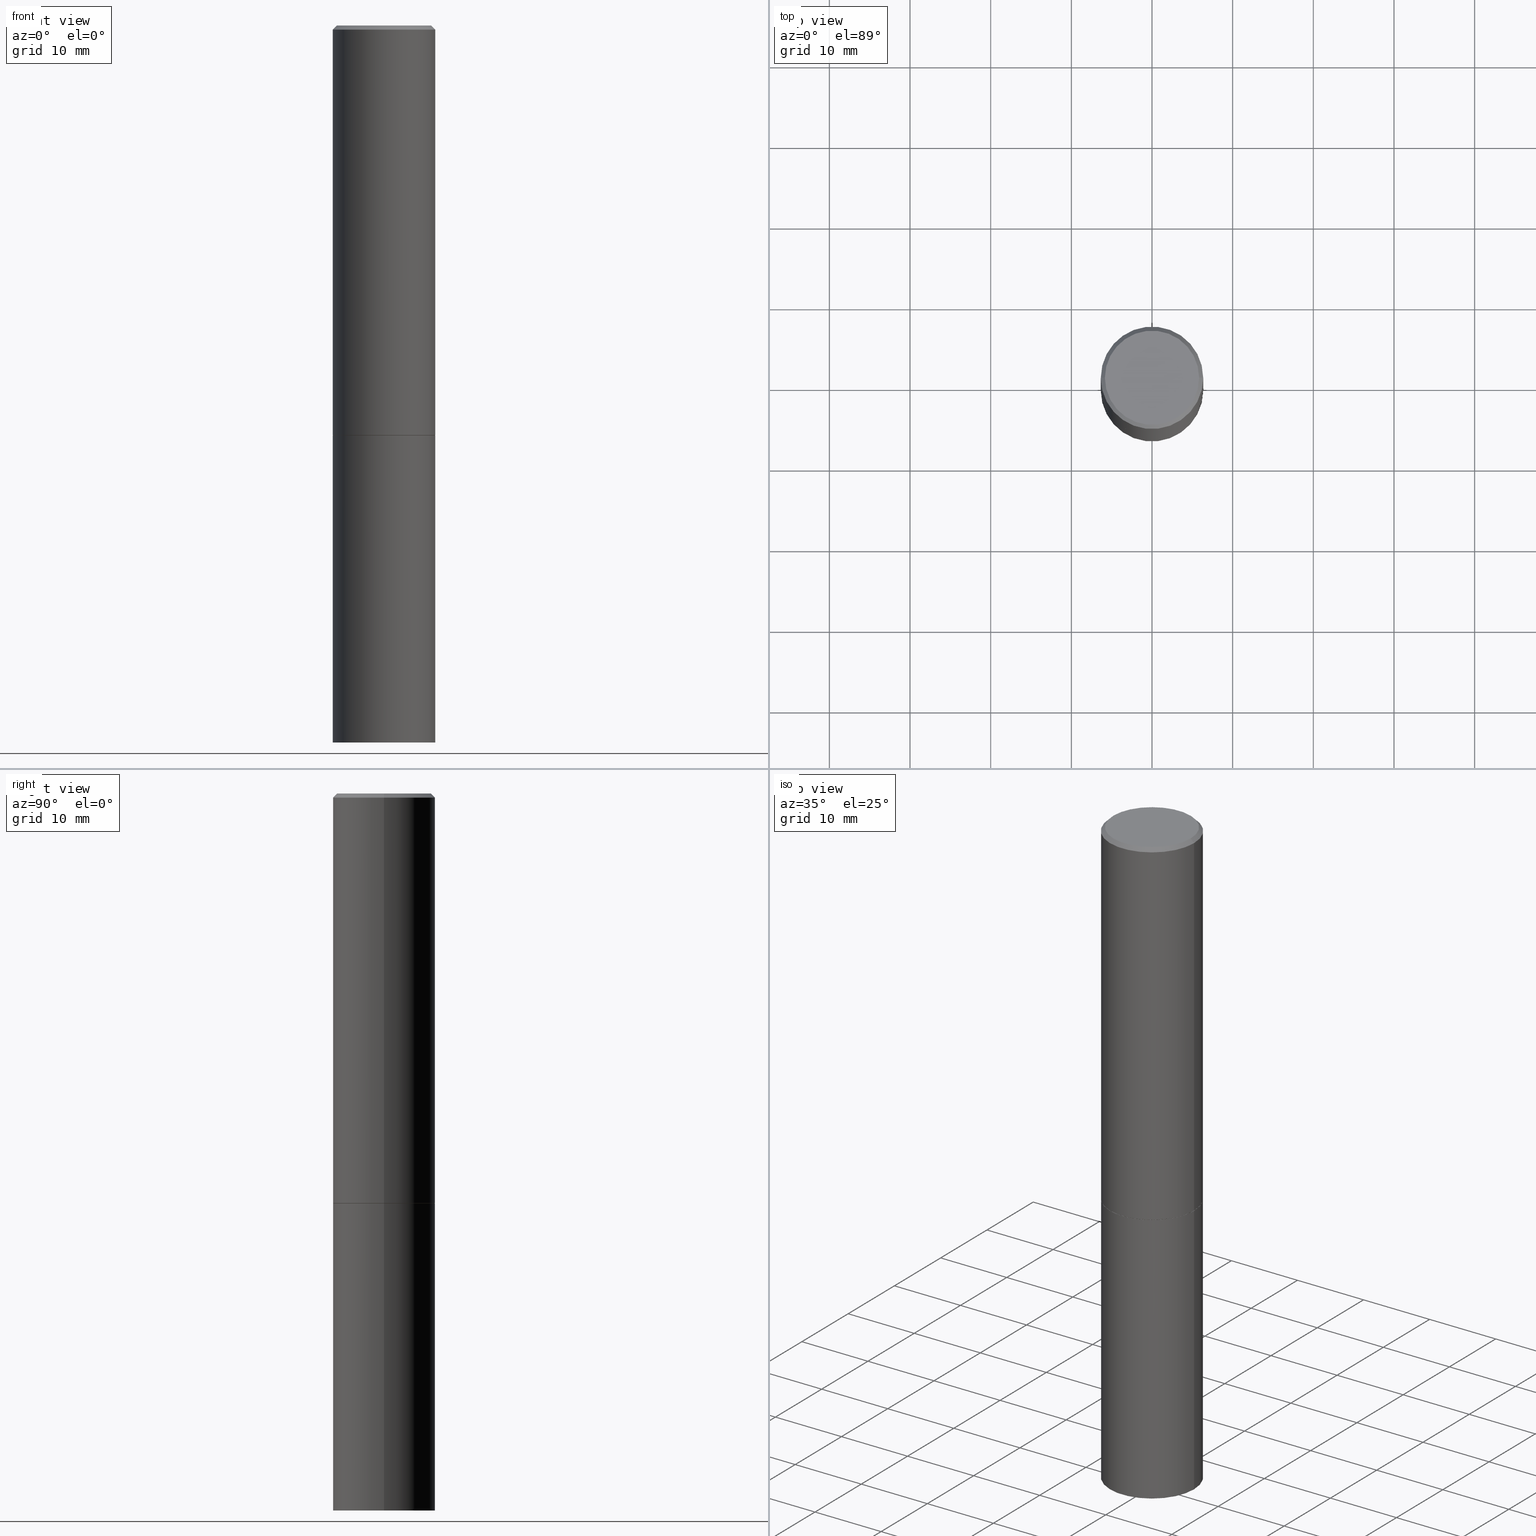
[diagram: canonical four-view strip — front | top / right | iso, engineering-drawing reading convention]
A machine part, canonical four-view strip (front | top / right | iso — engineering-drawing reading convention). The complete STEP part file that produces these views, byte-faithful:
ISO-10303-21;
HEADER;
FILE_DESCRIPTION (( 'STEP AP203' ),
    '1' );
FILE_NAME ('77187.STEP',
    '2024-02-29T16:03:14',
    ( '' ),
    ( '' ),
    'SwSTEP 2.0',
    'SolidWorks 2023',
    '' );
FILE_SCHEMA (( 'CONFIG_CONTROL_DESIGN' ));
ENDSEC;

DATA;
#1 = CARTESIAN_POINT ( 'NONE',  ( 4.890937612370272633E-29, -6.982962677686290376E-15, -1.999999999999999778 ) ) ;
#2 = AXIS2_PLACEMENT_3D ( 'NONE', #123, #240, #359 ) ;
#3 = EDGE_CURVE ( 'NONE', #344, #286, #336, .T. ) ;
#4 =( CONVERSION_BASED_UNIT ( 'INCH', #55 ) LENGTH_UNIT ( ) NAMED_UNIT ( #236 ) );
#5 = AXIS2_PLACEMENT_3D ( 'NONE', #15, #161, #168 ) ;
#6 =( LENGTH_UNIT ( ) NAMED_UNIT ( * ) SI_UNIT ( $, .METRE. ) );
#7 = PRODUCT_DEFINITION_SHAPE ( 'NONE', 'NONE',  #33 ) ;
#8 = PERSON_AND_ORGANIZATION ( #346, #20 ) ;
#9 = EDGE_CURVE ( 'NONE', #167, #69, #72, .T. ) ;
#10 = DIRECTION ( 'NONE',  ( 1.000000000000000000, -6.982962677686266711E-15, 0.000000000000000000 ) ) ;
#11 = CONICAL_SURFACE ( 'NONE', #166, 0.2499999999999998057, 0.7853981633974482790 ) ;
#12 = CARTESIAN_POINT ( 'NONE',  ( -0.2500000000000000000, -1.748293572161903489E-15, -1.998999999999999888 ) ) ;
#13 = PERSON_AND_ORGANIZATION ( #346, #20 ) ;
#14 = CARTESIAN_POINT ( 'NONE',  ( 4.890937612370272633E-29, -6.982962677686290376E-15, -1.999999999999999778 ) ) ;
#15 = CARTESIAN_POINT ( 'NONE',  ( 4.890937612370273194E-29, -6.982962677686291165E-15, -2.000000000000000000 ) ) ;
#16 = VECTOR ( 'NONE', #303, 39.37007874015748854 ) ;
#17 = AXIS2_PLACEMENT_3D ( 'NONE', #243, #332, #71 ) ;
#18 = CYLINDRICAL_SURFACE ( 'NONE', #27, 0.2500000000000000000 ) ;
#19 = ORIENTED_EDGE ( 'NONE', *, *, #199, .F. ) ;
#20 = ORGANIZATION ( 'UNSPECIFIED', 'UNSPECIFIED', '' ) ;
#21 = CIRCLE ( 'NONE', #339, 0.2500000000000000000 ) ;
#22 = DIRECTION ( 'NONE',  ( 1.000000000000000000, -6.982962677686266711E-15, 0.000000000000000000 ) ) ;
#23 = ORIENTED_EDGE ( 'NONE', *, *, #289, .T. ) ;
#24 = CARTESIAN_POINT ( 'NONE',  ( -0.2299999999999997324, 1.640996229256270744E-15, 4.268512490089056766E-18 ) ) ;
#25 = ORIENTED_EDGE ( 'NONE', *, *, #136, .F. ) ;
#26 = EDGE_CURVE ( 'NONE', #286, #69, #21, .T. ) ;
#27 = AXIS2_PLACEMENT_3D ( 'NONE', #212, #158, #246 ) ;
#28 = ORIENTED_EDGE ( 'NONE', *, *, #154, .F. ) ;
#29 = APPLICATION_CONTEXT ( 'configuration controlled 3d designs of mechanical parts and assemblies' ) ;
#30 =( GEOMETRIC_REPRESENTATION_CONTEXT ( 3 ) GLOBAL_UNCERTAINTY_ASSIGNED_CONTEXT ( ( #138 ) ) GLOBAL_UNIT_ASSIGNED_CONTEXT ( ( #4, #209, #119 ) ) REPRESENTATION_CONTEXT ( 'NONE', 'WORKASPACE' ) );
#31 = ORIENTED_EDGE ( 'NONE', *, *, #338, .F. ) ;
#32 = AXIS2_PLACEMENT_3D ( 'NONE', #143, #285, #110 ) ;
#33 = PRODUCT_DEFINITION ( 'UNKNOWN', '', #78, #310 ) ;
#34 = APPROVAL_STATUS ( 'not_yet_approved' ) ;
#35 = CARTESIAN_POINT ( 'NONE',  ( 0.2499999999999998057, -1.784954126219744611E-15, -0.02000000000000005593 ) ) ;
#36 = CALENDAR_DATE ( 2024, 29, 2 ) ;
#37 = DIRECTION ( 'NONE',  ( 1.000000000000000000, -6.982962677686265922E-15, 4.876176775795935793E-29 ) ) ;
#38 = CC_DESIGN_PERSON_AND_ORGANIZATION_ASSIGNMENT ( #278, #159, ( #33 ) ) ;
#39 = DATE_AND_TIME ( #36, #118 ) ;
#40 = ORIENTED_EDGE ( 'NONE', *, *, #287, .T. ) ;
#41 = CARTESIAN_POINT ( 'NONE',  ( 0.000000000000000000, 0.000000000000000000, 0.000000000000000000 ) ) ;
#42 = VERTEX_POINT ( 'NONE', #48 ) ;
#43 = SECURITY_CLASSIFICATION_LEVEL ( 'unclassified' ) ;
#44 = FACE_OUTER_BOUND ( 'NONE', #148, .T. ) ;
#45 = AXIS2_PLACEMENT_3D ( 'NONE', #41, #92, #155 ) ;
#46 = CYLINDRICAL_SURFACE ( 'NONE', #252, 0.2500000000000000000 ) ;
#47 = ORIENTED_EDGE ( 'NONE', *, *, #9, .F. ) ;
#48 = CARTESIAN_POINT ( 'NONE',  ( -0.2500000000000000000, -7.825216842418399394E-15, -3.500000000000000000 ) ) ;
#49 = FACE_OUTER_BOUND ( 'NONE', #176, .T. ) ;
#50 = ORIENTED_EDGE ( 'NONE', *, *, #254, .F. ) ;
#51 = EDGE_CURVE ( 'NONE', #204, #260, #185, .T. ) ;
#52 = CARTESIAN_POINT ( 'NONE',  ( 4.890937612370272633E-29, -6.982962677686290376E-15, -1.999999999999999778 ) ) ;
#53 = ORIENTED_EDGE ( 'NONE', *, *, #95, .T. ) ;
#54 = ORIENTED_EDGE ( 'NONE', *, *, #3, .F. ) ;
#55 = LENGTH_MEASURE_WITH_UNIT ( LENGTH_MEASURE( 0.02539999999999999897 ), #6 );
#56 = CIRCLE ( 'NONE', #360, 0.2499999999999998057 ) ;
#57 = VERTEX_POINT ( 'NONE', #313 ) ;
#58 = CARTESIAN_POINT ( 'NONE',  ( 0.2299999999999997324, -1.681434332853597433E-15, 4.268512490111905999E-18 ) ) ;
#59 = DIRECTION ( 'NONE',  ( 1.000000000000000000, 0.000000000000000000, 0.000000000000000000 ) ) ;
#60 = CARTESIAN_POINT ( 'NONE',  ( 1.745740669421652072E-15, 0.2499999999999877598, -3.500000000000000888 ) ) ;
#61 = LOCAL_TIME ( 11, 3, 14.00000000000000000, #352 ) ;
#62 = APPROVAL ( #98, 'UNSPECIFIED' ) ;
#63 = CIRCLE ( 'NONE', #109, 0.2299999999999997324 ) ;
#64 = CARTESIAN_POINT ( 'NONE',  ( 1.745740669421615390E-15, 0.2499999999999930334, -2.000000000000000888 ) ) ;
#65 = CALENDAR_DATE ( 2024, 29, 2 ) ;
#66 = DIRECTION ( 'NONE',  ( -1.000000000000000000, 6.982962677686265922E-15, -4.876176775795935793E-29 ) ) ;
#67 = PLANE ( 'NONE',  #297 ) ;
#68 = COORDINATED_UNIVERSAL_TIME_OFFSET ( 5, 0, .BEHIND. ) ;
#69 = VERTEX_POINT ( 'NONE', #152 ) ;
#70 = CARTESIAN_POINT ( 'NONE',  ( 0.2489999999999999991, -8.721720384430171040E-15, -1.999999999999999778 ) ) ;
#71 = DIRECTION ( 'NONE',  ( 1.000000000000000000, -6.982962677686270655E-15, 0.000000000000000000 ) ) ;
#72 = LINE ( 'NONE', #311, #218 ) ;
#73 = ORIENTED_EDGE ( 'NONE', *, *, #338, .T. ) ;
#74 = FACE_OUTER_BOUND ( 'NONE', #261, .T. ) ;
#75 = CIRCLE ( 'NONE', #107, 0.2489999999999999991 ) ;
#76 = DIRECTION ( 'NONE',  ( -2.445468806185136877E-29, 3.491481338843145188E-15, 1.000000000000000000 ) ) ;
#77 = DIRECTION ( 'NONE',  ( -2.445468806185136597E-29, 3.491481338843145583E-15, 1.000000000000000000 ) ) ;
#78 = PRODUCT_DEFINITION_FORMATION_WITH_SPECIFIED_SOURCE ( 'ANY', '', #170, .NOT_KNOWN. ) ;
#79 = PLANE ( 'NONE',  #80 ) ;
#80 = AXIS2_PLACEMENT_3D ( 'NONE', #60, #178, #291 ) ;
#81 = ORIENTED_EDGE ( 'NONE', *, *, #289, .F. ) ;
#82 = AXIS2_PLACEMENT_3D ( 'NONE', #302, #353, #66 ) ;
#83 = PERSON_AND_ORGANIZATION ( #346, #20 ) ;
#84 = EDGE_CURVE ( 'NONE', #57, #146, #257, .T. ) ;
#85 = ORIENTED_EDGE ( 'NONE', *, *, #95, .F. ) ;
#86 = CC_DESIGN_PERSON_AND_ORGANIZATION_ASSIGNMENT ( #83, #205, ( #170 ) ) ;
#87 = CARTESIAN_POINT ( 'NONE',  ( 0.000000000000000000, 0.000000000000000000, 0.000000000000000000 ) ) ;
#88 = VERTEX_POINT ( 'NONE', #58 ) ;
#89 = LINE ( 'NONE', #322, #198 ) ;
#90 = CLOSED_SHELL ( 'NONE', ( #318, #175, #244, #333, #296, #307, #251, #258 ) ) ;
#91 = PLANE ( 'NONE',  #298 ) ;
#92 = DIRECTION ( 'NONE',  ( -2.445468806185136597E-29, 3.491481338843145583E-15, 1.000000000000000000 ) ) ;
#93 = APPROVAL_ROLE ( '' ) ;
#94 = DIRECTION ( 'NONE',  ( -2.445468806185136597E-29, 3.491481338843145583E-15, 1.000000000000000000 ) ) ;
#95 = EDGE_CURVE ( 'NONE', #344, #167, #172, .T. ) ;
#96 = DATE_TIME_ROLE ( 'creation_date' ) ;
#97 = DIRECTION ( 'NONE',  ( -2.445468806185136597E-29, 3.491481338843145583E-15, 1.000000000000000000 ) ) ;
#98 = APPROVAL_STATUS ( 'not_yet_approved' ) ;
#99 = ORIENTED_EDGE ( 'NONE', *, *, #357, .T. ) ;
#100 = DIRECTION ( 'NONE',  ( 1.000000000000000000, -6.982962677686266711E-15, 0.000000000000000000 ) ) ;
#101 = DATE_AND_TIME ( #276, #150 ) ;
#102 = VERTEX_POINT ( 'NONE', #24 ) ;
#103 = DIRECTION ( 'NONE',  ( -0.7071067811865474617, 2.468850131082256666E-15, -0.7071067811865474617 ) ) ;
#104 = EDGE_CURVE ( 'NONE', #42, #260, #89, .T. ) ;
#105 = CARTESIAN_POINT ( 'NONE',  ( 0.2499999999999998890, -1.745740669421565889E-15, 1.219044193948983388E-29 ) ) ;
#106 = MANIFOLD_SOLID_BREP ( 'Body-Move/Copy2[1]', #270 ) ;
#107 = AXIS2_PLACEMENT_3D ( 'NONE', #220, #249, #10 ) ;
#108 = VECTOR ( 'NONE', #279, 39.37007874015748143 ) ;
#109 = AXIS2_PLACEMENT_3D ( 'NONE', #200, #314, #250 ) ;
#110 = DIRECTION ( 'NONE',  ( 1.000000000000000000, -6.982962677686266711E-15, 4.876176775795935793E-29 ) ) ;
#111 = ADVANCED_FACE ( 'NONE', ( #320 ), #79, .T. ) ;
#112 = ORIENTED_EDGE ( 'NONE', *, *, #269, .T. ) ;
#113 = ORIENTED_EDGE ( 'NONE', *, *, #225, .F. ) ;
#114 = LINE ( 'NONE', #340, #292 ) ;
#115 = VECTOR ( 'NONE', #284, 39.37007874015748143 ) ;
#116 = ORIENTED_EDGE ( 'NONE', *, *, #264, .F. ) ;
#117 = ORIENTED_EDGE ( 'NONE', *, *, #136, .T. ) ;
#118 = LOCAL_TIME ( 11, 3, 14.00000000000000000, #247 ) ;
#119 =( NAMED_UNIT ( * ) SI_UNIT ( $, .STERADIAN. ) SOLID_ANGLE_UNIT ( ) );
#120 = EDGE_LOOP ( 'NONE', ( #147, #40, #23, #19 ) ) ;
#121 = CIRCLE ( 'NONE', #330, 0.2299999999999997324 ) ;
#122 = CARTESIAN_POINT ( 'NONE',  ( 0.2500000000000000000, -1.396592535537257602E-14, -3.500000000000000000 ) ) ;
#123 = CARTESIAN_POINT ( 'NONE',  ( 4.888492143564087591E-29, -6.979471196347447369E-15, -1.998999999999999888 ) ) ;
#124 = APPROVAL_DATE_TIME ( #39, #202 ) ;
#125 = DIRECTION ( 'NONE',  ( -1.000000000000000000, 6.982962677686266711E-15, 0.000000000000000000 ) ) ;
#126 = VECTOR ( 'NONE', #193, 39.37007874015748143 ) ;
#127 = CARTESIAN_POINT ( 'NONE',  ( 4.890937612370273194E-29, -6.982962677686291165E-15, -2.000000000000000000 ) ) ;
#128 = VERTEX_POINT ( 'NONE', #122 ) ;
#129 = DATE_AND_TIME ( #211, #304 ) ;
#130 = DIRECTION ( 'NONE',  ( 1.000000000000000000, -6.982962677686266711E-15, 4.876225828469314487E-29 ) ) ;
#131 = ADVANCED_FACE ( 'NONE', ( #350 ), #91, .F. ) ;
#132 = CIRCLE ( 'NONE', #2, 0.2500000000000000000 ) ;
#133 = APPROVAL_ROLE ( '' ) ;
#134 = ORIENTED_EDGE ( 'NONE', *, *, #264, .T. ) ;
#135 = DIRECTION ( 'NONE',  ( 1.000000000000000000, -6.982962677686266711E-15, 0.000000000000000000 ) ) ;
#136 = EDGE_CURVE ( 'NONE', #69, #286, #132, .T. ) ;
#137 = CARTESIAN_POINT ( 'NONE',  ( 0.2500000000000000000, -8.728703347107857054E-15, -2.000000000000000000 ) ) ;
#138 = UNCERTAINTY_MEASURE_WITH_UNIT (LENGTH_MEASURE( 1.000000000000000082E-05 ), #4, 'distance_accuracy_value', 'NONE');
#139 = ORIENTED_EDGE ( 'NONE', *, *, #321, .T. ) ;
#140 = CC_DESIGN_SECURITY_CLASSIFICATION ( #290, ( #78 ) ) ;
#141 = APPLICATION_CONTEXT ( 'configuration controlled 3d designs of mechanical parts and assemblies' ) ;
#142 = CIRCLE ( 'NONE', #365, 0.2500000000000000000 ) ;
#143 = CARTESIAN_POINT ( 'NONE',  ( 0.000000000000000000, 0.000000000000000000, 0.000000000000000000 ) ) ;
#144 = DIRECTION ( 'NONE',  ( 1.000000000000000000, -6.982962677686266711E-15, 0.000000000000000000 ) ) ;
#145 = ORIENTED_EDGE ( 'NONE', *, *, #84, .F. ) ;
#146 = VERTEX_POINT ( 'NONE', #295 ) ;
#147 = ORIENTED_EDGE ( 'NONE', *, *, #104, .F. ) ;
#148 = EDGE_LOOP ( 'NONE', ( #316, #301, #256, #81 ) ) ;
#149 = DIRECTION ( 'NONE',  ( 1.000000000000000000, -6.982962677686266711E-15, 0.000000000000000000 ) ) ;
#150 = LOCAL_TIME ( 11, 3, 14.00000000000000000, #186 ) ;
#151 = APPROVAL ( #34, 'UNSPECIFIED' ) ;
#152 = CARTESIAN_POINT ( 'NONE',  ( 0.2500000000000000000, -8.725211865769014047E-15, -1.998999999999999888 ) ) ;
#153 = PERSON_AND_ORGANIZATION_ROLE ( 'classification_officer' ) ;
#154 = EDGE_CURVE ( 'NONE', #88, #57, #187, .T. ) ;
#155 = DIRECTION ( 'NONE',  ( 1.000000000000000000, -6.982962677686266711E-15, 4.876176775795935793E-29 ) ) ;
#156 = COORDINATED_UNIVERSAL_TIME_OFFSET ( 5, 0, .BEHIND. ) ;
#157 = CONICAL_SURFACE ( 'NONE', #366, 0.2489999999999999991, 0.7853981633975507526 ) ;
#158 = DIRECTION ( 'NONE',  ( -2.445468806185136597E-29, 3.491481338843145583E-15, 1.000000000000000000 ) ) ;
#159 = PERSON_AND_ORGANIZATION_ROLE ( 'creator' ) ;
#160 = DIRECTION ( 'NONE',  ( 1.000000000000000000, -6.982962677686266711E-15, 4.876176775795935793E-29 ) ) ;
#161 = DIRECTION ( 'NONE',  ( -2.445468806185136597E-29, 3.491481338843145583E-15, 1.000000000000000000 ) ) ;
#162 = CC_DESIGN_APPROVAL ( #62, ( #78 ) ) ;
#163 = CARTESIAN_POINT ( 'NONE',  ( 0.2500000000000000000, -1.745740669421566678E-15, 1.219044193948983948E-29 ) ) ;
#164 = EDGE_LOOP ( 'NONE', ( #116, #347, #345, #50 ) ) ;
#165 = FACE_OUTER_BOUND ( 'NONE', #328, .T. ) ;
#166 = AXIS2_PLACEMENT_3D ( 'NONE', #277, #324, #125 ) ;
#167 = VERTEX_POINT ( 'NONE', #70 ) ;
#168 = DIRECTION ( 'NONE',  ( 1.000000000000000000, -6.982962677686266711E-15, 0.000000000000000000 ) ) ;
#169 = DIRECTION ( 'NONE',  ( -1.000000000000000000, 6.982962677686266711E-15, 0.000000000000000000 ) ) ;
#170 = PRODUCT ( '77187', '77187', '', ( #293 ) ) ;
#171 = FACE_OUTER_BOUND ( 'NONE', #219, .T. ) ;
#172 = CIRCLE ( 'NONE', #262, 0.2489999999999999991 ) ;
#173 = ORIENTED_EDGE ( 'NONE', *, *, #269, .F. ) ;
#174 = DIRECTION ( 'NONE',  ( -2.445468806185136597E-29, 3.491481338843145583E-15, 1.000000000000000000 ) ) ;
#175 = ADVANCED_FACE ( 'NONE', ( #74 ), #329, .T. ) ;
#176 = EDGE_LOOP ( 'NONE', ( #315, #233, #25, #47 ) ) ;
#177 = AXIS2_PLACEMENT_3D ( 'NONE', #87, #238, #59 ) ;
#178 = DIRECTION ( 'NONE',  ( 2.438088387897960049E-29, -3.491481338843145188E-15, -1.000000000000000000 ) ) ;
#179 = AXIS2_PLACEMENT_3D ( 'NONE', #52, #77, #144 ) ;
#180 = DIRECTION ( 'NONE',  ( 2.438088387897960049E-29, -3.491481338843145188E-15, -1.000000000000000000 ) ) ;
#181 = PERSON_AND_ORGANIZATION ( #346, #20 ) ;
#182 = CARTESIAN_POINT ( 'NONE',  ( -0.2500000000000000000, -7.825216842418399394E-15, -2.000000000000000000 ) ) ;
#183 = CC_DESIGN_PERSON_AND_ORGANIZATION_ASSIGNMENT ( #181, #327, ( #78 ) ) ;
#184 = PLANE ( 'NONE',  #82 ) ;
#185 = CIRCLE ( 'NONE', #5, 0.2500000000000000000 ) ;
#186 = COORDINATED_UNIVERSAL_TIME_OFFSET ( 5, 0, .BEHIND. ) ;
#187 = LINE ( 'NONE', #35, #16 ) ;
#188 = LINE ( 'NONE', #163, #108 ) ;
#189 = LOCAL_TIME ( 11, 3, 14.00000000000000000, #156 ) ;
#190 = CC_DESIGN_APPROVAL ( #151, ( #290 ) ) ;
#191 = DIRECTION ( 'NONE',  ( -2.445468806185136597E-29, 3.491481338843145583E-15, 1.000000000000000000 ) ) ;
#192 = CIRCLE ( 'NONE', #227, 0.2500000000000000000 ) ;
#193 = DIRECTION ( 'NONE',  ( -2.445468806185136877E-29, 3.491481338843145188E-15, 1.000000000000000000 ) ) ;
#194 = ADVANCED_FACE ( 'NONE', ( #44 ), #18, .T. ) ;
#195 = FACE_OUTER_BOUND ( 'NONE', #235, .T. ) ;
#196 = CC_DESIGN_DATE_AND_TIME_ASSIGNMENT ( #334, #274, ( #290 ) ) ;
#197 = ADVANCED_BREP_SHAPE_REPRESENTATION ( '77187', ( #106, #351, #177 ), #30 ) ;
#198 = VECTOR ( 'NONE', #263, 39.37007874015748143 ) ;
#199 = EDGE_CURVE ( 'NONE', #260, #204, #192, .T. ) ;
#200 = CARTESIAN_POINT ( 'NONE',  ( -1.043851414335219820E-46, 1.490343170380447200E-32, 4.268512490100411279E-18 ) ) ;
#201 = EDGE_LOOP ( 'NONE', ( #323, #232 ) ) ;
#202 = APPROVAL ( #331, 'UNSPECIFIED' ) ;
#203 = DIRECTION ( 'NONE',  ( 2.445468806185136597E-29, -3.491481338843145583E-15, -1.000000000000000000 ) ) ;
#204 = VERTEX_POINT ( 'NONE', #137 ) ;
#205 = PERSON_AND_ORGANIZATION_ROLE ( 'design_owner' ) ;
#206 = ORIENTED_EDGE ( 'NONE', *, *, #254, .T. ) ;
#207 = AXIS2_PLACEMENT_3D ( 'NONE', #283, #203, #169 ) ;
#208 = ORIENTED_EDGE ( 'NONE', *, *, #199, .T. ) ;
#209 =( NAMED_UNIT ( * ) PLANE_ANGLE_UNIT ( ) SI_UNIT ( $, .RADIAN. ) );
#210 = APPROVAL_PERSON_ORGANIZATION ( #13, #62, #221 ) ;
#211 = CALENDAR_DATE ( 2024, 29, 2 ) ;
#212 = CARTESIAN_POINT ( 'NONE',  ( 0.000000000000000000, 0.000000000000000000, 0.000000000000000000 ) ) ;
#213 = APPROVAL_DATE_TIME ( #129, #151 ) ;
#214 = CARTESIAN_POINT ( 'NONE',  ( 4.890937612370287172E-31, -6.982962677686310098E-17, -0.02000000000000005593 ) ) ;
#215 = DATE_AND_TIME ( #300, #61 ) ;
#216 = LINE ( 'NONE', #335, #229 ) ;
#217 = CC_DESIGN_PERSON_AND_ORGANIZATION_ASSIGNMENT ( #241, #356, ( #78 ) ) ;
#218 = VECTOR ( 'NONE', #305, 39.37007874015748143 ) ;
#219 = EDGE_LOOP ( 'NONE', ( #54, #53, #358, #224 ) ) ;
#220 = CARTESIAN_POINT ( 'NONE',  ( 4.890937612370272633E-29, -6.982962677686290376E-15, -1.999999999999999778 ) ) ;
#221 = APPROVAL_ROLE ( '' ) ;
#222 = FACE_OUTER_BOUND ( 'NONE', #120, .T. ) ;
#223 = APPROVAL_PERSON_ORGANIZATION ( #361, #202, #133 ) ;
#224 = ORIENTED_EDGE ( 'NONE', *, *, #26, .F. ) ;
#225 = EDGE_CURVE ( 'NONE', #167, #344, #75, .T. ) ;
#226 = CARTESIAN_POINT ( 'NONE',  ( 4.888492143564087591E-29, -6.979471196347447369E-15, -1.998999999999999888 ) ) ;
#227 = AXIS2_PLACEMENT_3D ( 'NONE', #127, #272, #135 ) ;
#228 = ADVANCED_FACE ( 'NONE', ( #222 ), #46, .T. ) ;
#229 = VECTOR ( 'NONE', #103, 39.37007874015748854 ) ;
#230 = FACE_OUTER_BOUND ( 'NONE', #245, .T. ) ;
#231 = CARTESIAN_POINT ( 'NONE',  ( -0.2489999999999999991, -5.213711265643640920E-15, -1.999999999999999778 ) ) ;
#232 = ORIENTED_EDGE ( 'NONE', *, *, #287, .F. ) ;
#233 = ORIENTED_EDGE ( 'NONE', *, *, #3, .T. ) ;
#234 = CC_DESIGN_APPROVAL ( #202, ( #33 ) ) ;
#235 = EDGE_LOOP ( 'NONE', ( #288, #343, #99, #173 ) ) ;
#236 = DIMENSIONAL_EXPONENTS ( 1.000000000000000000, 0.000000000000000000, 0.000000000000000000, 0.000000000000000000, 0.000000000000000000, 0.000000000000000000, 0.000000000000000000 ) ;
#237 = DIRECTION ( 'NONE',  ( 1.000000000000000000, -6.982962677686266711E-15, 0.000000000000000000 ) ) ;
#238 = DIRECTION ( 'NONE',  ( 0.000000000000000000, 0.000000000000000000, 1.000000000000000000 ) ) ;
#239 = EDGE_CURVE ( 'NONE', #128, #42, #142, .T. ) ;
#240 = DIRECTION ( 'NONE',  ( -2.445468806185136597E-29, 3.491481338843145583E-15, 1.000000000000000000 ) ) ;
#241 = PERSON_AND_ORGANIZATION ( #346, #20 ) ;
#242 = DIRECTION ( 'NONE',  ( -2.438088387897960049E-29, 3.491481338843145188E-15, 1.000000000000000000 ) ) ;
#243 = CARTESIAN_POINT ( 'NONE',  ( 8.559140821647976968E-29, -1.222018468595100934E-14, -3.500000000000000000 ) ) ;
#244 = ADVANCED_FACE ( 'NONE', ( #299 ), #11, .T. ) ;
#245 = EDGE_LOOP ( 'NONE', ( #28, #31, #206, #112 ) ) ;
#246 = DIRECTION ( 'NONE',  ( 1.000000000000000000, -6.982962677686266711E-15, 4.876176775795935793E-29 ) ) ;
#247 = COORDINATED_UNIVERSAL_TIME_OFFSET ( 5, 0, .BEHIND. ) ;
#248 = CONICAL_SURFACE ( 'NONE', #179, 0.2489999999999999991, 0.7853981633975507526 ) ;
#249 = DIRECTION ( 'NONE',  ( -2.445468806185136597E-29, 3.491481338843145583E-15, 1.000000000000000000 ) ) ;
#250 = DIRECTION ( 'NONE',  ( 1.000000000000000000, -6.982962677686266711E-15, 4.876225828469314487E-29 ) ) ;
#251 = ADVANCED_FACE ( 'NONE', ( #165 ), #67, .F. ) ;
#252 = AXIS2_PLACEMENT_3D ( 'NONE', #362, #191, #160 ) ;
#253 = CARTESIAN_POINT ( 'NONE',  ( -0.2489999999999999991, -5.208412811295418518E-15, -1.999999999999999778 ) ) ;
#254 = EDGE_CURVE ( 'NONE', #102, #146, #216, .T. ) ;
#255 = DIRECTION ( 'NONE',  ( -2.445468806185136597E-29, 3.491481338843145583E-15, 1.000000000000000000 ) ) ;
#256 = ORIENTED_EDGE ( 'NONE', *, *, #51, .F. ) ;
#257 = CIRCLE ( 'NONE', #308, 0.2499999999999998057 ) ;
#258 = ADVANCED_FACE ( 'NONE', ( #282 ), #184, .F. ) ;
#259 = APPLICATION_PROTOCOL_DEFINITION ( 'international standard', 'config_control_design', 1994, #29 ) ;
#260 = VERTEX_POINT ( 'NONE', #182 ) ;
#261 = EDGE_LOOP ( 'NONE', ( #117, #139, #145, #268 ) ) ;
#262 = AXIS2_PLACEMENT_3D ( 'NONE', #265, #174, #149 ) ;
#263 = DIRECTION ( 'NONE',  ( -2.445468806185136877E-29, 3.491481338843145188E-15, 1.000000000000000000 ) ) ;
#264 = EDGE_CURVE ( 'NONE', #88, #102, #121, .T. ) ;
#265 = CARTESIAN_POINT ( 'NONE',  ( 4.890937612370272633E-29, -6.982962677686290376E-15, -1.999999999999999778 ) ) ;
#266 = SHAPE_DEFINITION_REPRESENTATION ( #7, #197 ) ;
#267 = CARTESIAN_POINT ( 'NONE',  ( 4.890937612370287172E-31, -6.982962677686310098E-17, -0.02000000000000005593 ) ) ;
#268 = ORIENTED_EDGE ( 'NONE', *, *, #357, .F. ) ;
#269 = EDGE_CURVE ( 'NONE', #146, #57, #56, .T. ) ;
#270 = CLOSED_SHELL ( 'NONE', ( #194, #111, #131, #228 ) ) ;
#271 = PERSON_AND_ORGANIZATION ( #346, #20 ) ;
#272 = DIRECTION ( 'NONE',  ( -2.445468806185136597E-29, 3.491481338843145583E-15, 1.000000000000000000 ) ) ;
#273 = CIRCLE ( 'NONE', #17, 0.2500000000000000000 ) ;
#274 = DATE_TIME_ROLE ( 'classification_date' ) ;
#275 = DIRECTION ( 'NONE',  ( -2.445468806185136597E-29, 3.491481338843145583E-15, 1.000000000000000000 ) ) ;
#276 = CALENDAR_DATE ( 2024, 29, 2 ) ;
#277 = CARTESIAN_POINT ( 'NONE',  ( 4.890937612370287172E-31, -6.982962677686310098E-17, -0.02000000000000005593 ) ) ;
#278 = PERSON_AND_ORGANIZATION ( #346, #20 ) ;
#279 = DIRECTION ( 'NONE',  ( -2.445468806185136877E-29, 3.491481338843145188E-15, 1.000000000000000000 ) ) ;
#280 = DIRECTION ( 'NONE',  ( -2.445468806185136597E-29, 3.491481338843145583E-15, 1.000000000000000000 ) ) ;
#281 = CONICAL_SURFACE ( 'NONE', #207, 0.2499999999999998057, 0.7853981633974482790 ) ;
#282 = FACE_OUTER_BOUND ( 'NONE', #319, .T. ) ;
#283 = CARTESIAN_POINT ( 'NONE',  ( 4.890937612370287172E-31, -6.982962677686310098E-17, -0.02000000000000005593 ) ) ;
#284 = DIRECTION ( 'NONE',  ( -0.7071067811866199593, 7.493145998870616062E-15, 0.7071067811864750752 ) ) ;
#285 = DIRECTION ( 'NONE',  ( -2.445468806185136597E-29, 3.491481338843145583E-15, 1.000000000000000000 ) ) ;
#286 = VERTEX_POINT ( 'NONE', #12 ) ;
#287 = EDGE_CURVE ( 'NONE', #42, #128, #273, .T. ) ;
#288 = ORIENTED_EDGE ( 'NONE', *, *, #321, .F. ) ;
#289 = EDGE_CURVE ( 'NONE', #128, #204, #188, .T. ) ;
#290 = SECURITY_CLASSIFICATION ( '', '', #43 ) ;
#291 = DIRECTION ( 'NONE',  ( -1.000000000000000000, 6.982962677686265922E-15, -4.876176775795935793E-29 ) ) ;
#292 = VECTOR ( 'NONE', #76, 39.37007874015748143 ) ;
#293 = MECHANICAL_CONTEXT ( 'NONE', #141, 'mechanical' ) ;
#294 = DIRECTION ( 'NONE',  ( -1.000000000000000000, 6.982962677686265922E-15, -4.876176775795935793E-29 ) ) ;
#295 = CARTESIAN_POINT ( 'NONE',  ( -0.2499999999999998057, 1.675911042644702196E-15, -0.02000000000000005593 ) ) ;
#296 = ADVANCED_FACE ( 'NONE', ( #195 ), #312, .T. ) ;
#297 = AXIS2_PLACEMENT_3D ( 'NONE', #14, #242, #37 ) ;
#298 = AXIS2_PLACEMENT_3D ( 'NONE', #64, #180, #294 ) ;
#299 = FACE_OUTER_BOUND ( 'NONE', #164, .T. ) ;
#300 = CALENDAR_DATE ( 2024, 29, 2 ) ;
#301 = ORIENTED_EDGE ( 'NONE', *, *, #104, .T. ) ;
#302 = CARTESIAN_POINT ( 'NONE',  ( 1.606081415867839292E-15, 0.2299999999999997324, -8.009064516888723911E-16 ) ) ;
#303 = DIRECTION ( 'NONE',  ( 0.7071067811865474617, -7.319954787623256045E-15, -0.7071067811865474617 ) ) ;
#304 = LOCAL_TIME ( 11, 3, 14.00000000000000000, #68 ) ;
#305 = DIRECTION ( 'NONE',  ( 0.7071067811866199593, -2.468850131083015945E-15, 0.7071067811864750752 ) ) ;
#306 = DIRECTION ( 'NONE',  ( 1.000000000000000000, -6.982962677686270655E-15, 0.000000000000000000 ) ) ;
#307 = ADVANCED_FACE ( 'NONE', ( #171 ), #157, .T. ) ;
#308 = AXIS2_PLACEMENT_3D ( 'NONE', #267, #255, #237 ) ;
#309 = EDGE_LOOP ( 'NONE', ( #337, #208 ) ) ;
#310 = DESIGN_CONTEXT ( 'detailed design', #29, 'design' ) ;
#311 = CARTESIAN_POINT ( 'NONE',  ( 0.2489999999999999991, -8.721720384430171040E-15, -1.999999999999999778 ) ) ;
#312 = CYLINDRICAL_SURFACE ( 'NONE', #32, 0.2499999999999998890 ) ;
#313 = CARTESIAN_POINT ( 'NONE',  ( 0.2499999999999998057, -1.784954126219744611E-15, -0.02000000000000005593 ) ) ;
#314 = DIRECTION ( 'NONE',  ( -2.445468806185136597E-29, 3.491481338843145583E-15, 1.000000000000000000 ) ) ;
#315 = ORIENTED_EDGE ( 'NONE', *, *, #225, .T. ) ;
#316 = ORIENTED_EDGE ( 'NONE', *, *, #239, .T. ) ;
#317 = CC_DESIGN_PERSON_AND_ORGANIZATION_ASSIGNMENT ( #8, #153, ( #290 ) ) ;
#318 = ADVANCED_FACE ( 'NONE', ( #49 ), #248, .T. ) ;
#319 = EDGE_LOOP ( 'NONE', ( #73, #134 ) ) ;
#320 = FACE_OUTER_BOUND ( 'NONE', #201, .T. ) ;
#321 = EDGE_CURVE ( 'NONE', #286, #146, #114, .T. ) ;
#322 = CARTESIAN_POINT ( 'NONE',  ( -0.2500000000000000000, 1.776356839400250465E-15, -1.229733772563726445E-29 ) ) ;
#323 = ORIENTED_EDGE ( 'NONE', *, *, #239, .F. ) ;
#324 = DIRECTION ( 'NONE',  ( 2.445468806185136597E-29, -3.491481338843145583E-15, -1.000000000000000000 ) ) ;
#325 = CARTESIAN_POINT ( 'NONE',  ( 8.559140821647976968E-29, -1.222018468595100934E-14, -3.500000000000000000 ) ) ;
#326 = PRODUCT_RELATED_PRODUCT_CATEGORY ( 'detail', '', ( #170 ) ) ;
#327 = PERSON_AND_ORGANIZATION_ROLE ( 'design_supplier' ) ;
#328 = EDGE_LOOP ( 'NONE', ( #113, #85 ) ) ;
#329 = CYLINDRICAL_SURFACE ( 'NONE', #45, 0.2499999999999998890 ) ;
#330 = AXIS2_PLACEMENT_3D ( 'NONE', #355, #94, #130 ) ;
#331 = APPROVAL_STATUS ( 'not_yet_approved' ) ;
#332 = DIRECTION ( 'NONE',  ( -2.445468806185136597E-29, 3.491481338843145583E-15, 1.000000000000000000 ) ) ;
#333 = ADVANCED_FACE ( 'NONE', ( #230 ), #281, .T. ) ;
#334 = DATE_AND_TIME ( #65, #189 ) ;
#335 = CARTESIAN_POINT ( 'NONE',  ( -0.2499999999999998057, 1.675911042644702196E-15, -0.02000000000000005593 ) ) ;
#336 = LINE ( 'NONE', #231, #115 ) ;
#337 = ORIENTED_EDGE ( 'NONE', *, *, #51, .T. ) ;
#338 = EDGE_CURVE ( 'NONE', #102, #88, #63, .T. ) ;
#339 = AXIS2_PLACEMENT_3D ( 'NONE', #226, #280, #341 ) ;
#340 = CARTESIAN_POINT ( 'NONE',  ( -0.2499999999999998890, 1.776356839400249676E-15, -1.229733772563726025E-29 ) ) ;
#341 = DIRECTION ( 'NONE',  ( 1.000000000000000000, -6.982962677686266711E-15, 0.000000000000000000 ) ) ;
#342 = DIRECTION ( 'NONE',  ( -2.445468806185136597E-29, 3.491481338843145583E-15, 1.000000000000000000 ) ) ;
#343 = ORIENTED_EDGE ( 'NONE', *, *, #26, .T. ) ;
#344 = VERTEX_POINT ( 'NONE', #253 ) ;
#345 = ORIENTED_EDGE ( 'NONE', *, *, #84, .T. ) ;
#346 = PERSON ( 'UNSPECIFIED', 'UNSPECIFIED', 'UNSPECIFIED', ('UNSPECIFIED'), ('UNSPECIFIED'), ('UNSPECIFIED') ) ;
#347 = ORIENTED_EDGE ( 'NONE', *, *, #154, .T. ) ;
#348 = CC_DESIGN_DATE_AND_TIME_ASSIGNMENT ( #101, #96, ( #33 ) ) ;
#349 = APPLICATION_PROTOCOL_DEFINITION ( 'international standard', 'config_control_design', 1994, #141 ) ;
#350 = FACE_OUTER_BOUND ( 'NONE', #309, .T. ) ;
#351 = MANIFOLD_SOLID_BREP ( 'Body-Move/Copy2[2]', #90 ) ;
#352 = COORDINATED_UNIVERSAL_TIME_OFFSET ( 5, 0, .BEHIND. ) ;
#353 = DIRECTION ( 'NONE',  ( 2.438088387897960049E-29, -3.491481338843145188E-15, -1.000000000000000000 ) ) ;
#354 = APPROVAL_DATE_TIME ( #215, #62 ) ;
#355 = CARTESIAN_POINT ( 'NONE',  ( -1.043851414335219820E-46, 1.490343170380447200E-32, 4.268512490100411279E-18 ) ) ;
#356 = PERSON_AND_ORGANIZATION_ROLE ( 'creator' ) ;
#357 = EDGE_CURVE ( 'NONE', #69, #57, #363, .T. ) ;
#358 = ORIENTED_EDGE ( 'NONE', *, *, #9, .T. ) ;
#359 = DIRECTION ( 'NONE',  ( 1.000000000000000000, -6.982962677686266711E-15, 0.000000000000000000 ) ) ;
#360 = AXIS2_PLACEMENT_3D ( 'NONE', #214, #275, #100 ) ;
#361 = PERSON_AND_ORGANIZATION ( #346, #20 ) ;
#362 = CARTESIAN_POINT ( 'NONE',  ( 0.000000000000000000, 0.000000000000000000, 0.000000000000000000 ) ) ;
#363 = LINE ( 'NONE', #105, #126 ) ;
#364 = APPROVAL_PERSON_ORGANIZATION ( #271, #151, #93 ) ;
#365 = AXIS2_PLACEMENT_3D ( 'NONE', #325, #97, #306 ) ;
#366 = AXIS2_PLACEMENT_3D ( 'NONE', #1, #342, #22 ) ;
ENDSEC;
END-ISO-10303-21;
